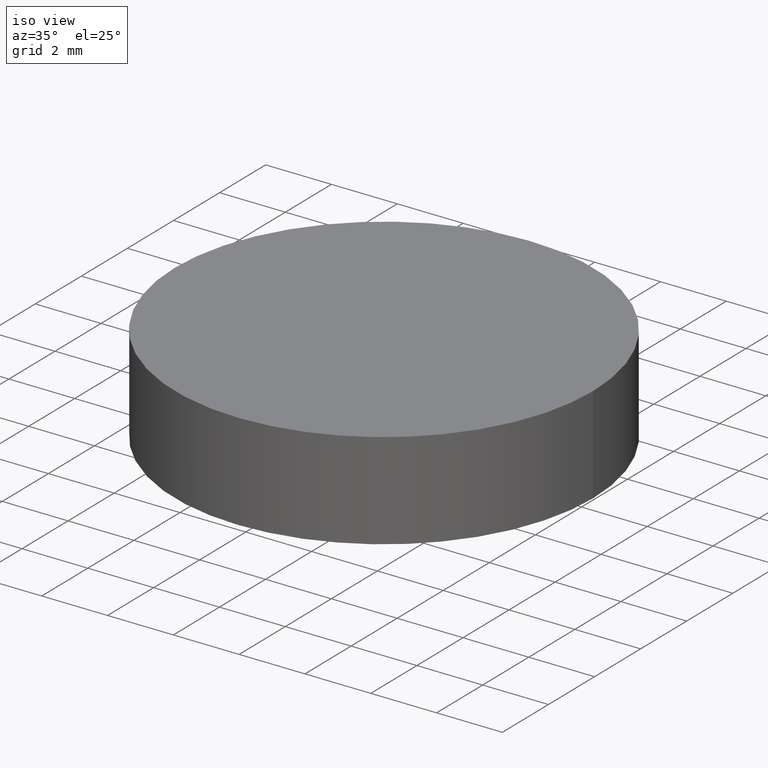
[diagram: clean part render]
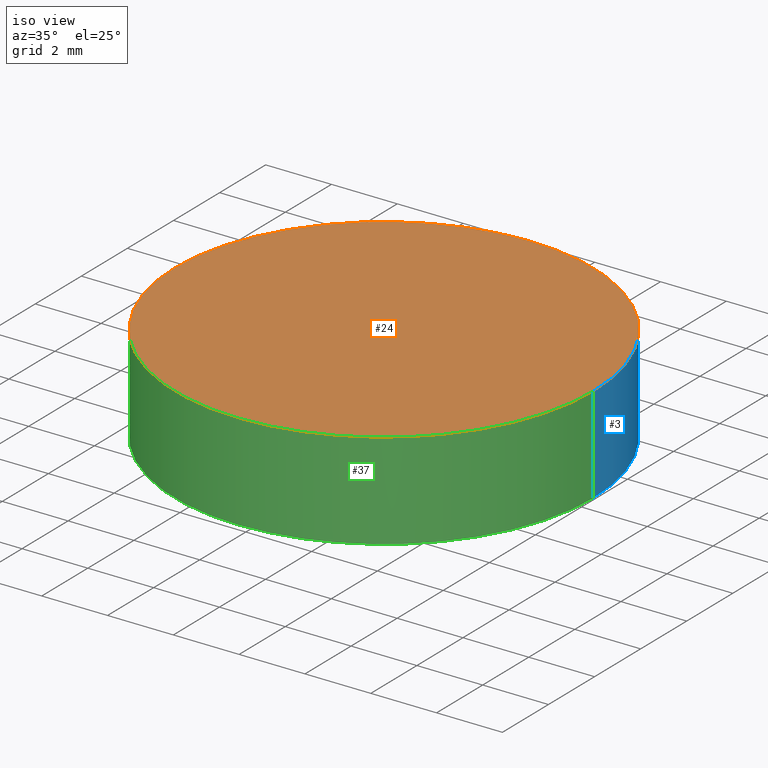
[diagram: same view with three faces highlighted in distinct colors, each labeled with its STEP entity id]
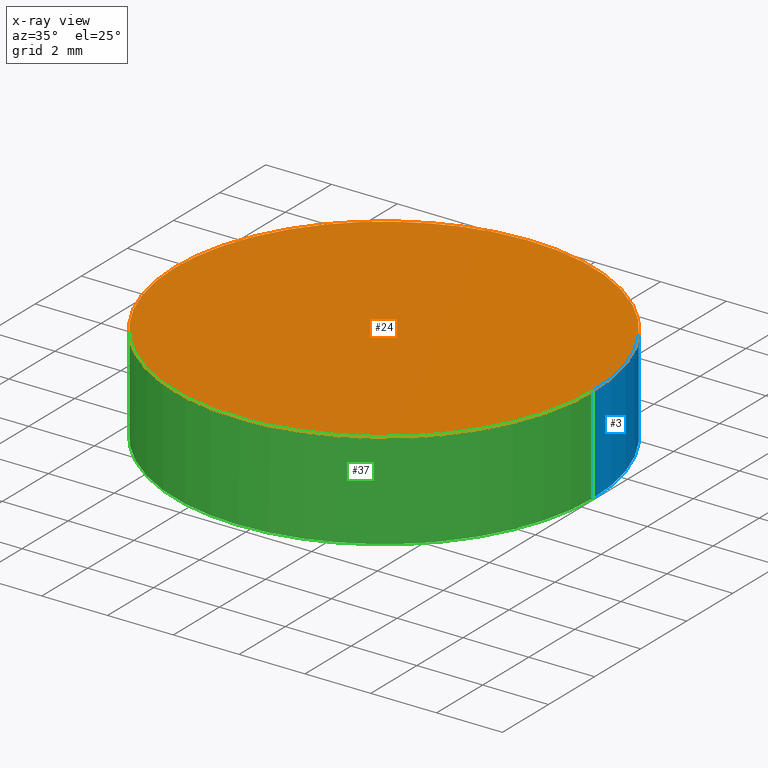
[diagram: x-ray of the same camera — body ghosted, the three highlighted faces saturated]
A machine part, iso view with three faces highlighted in distinct colors.
The next image is the same camera in x-ray (body ghosted, the three faces saturated) — at least one of them is partly hidden behind the body in this view.
Their STEP definitions:

[orange] entity #24 — the highlighted planar face has unit normal (0, 0, 1).
#6 = CARTESIAN_POINT ( 'NONE',  ( 3.888253587292850026E-16, 6.349999999999999645, 3.000000000000000000 ) ) ;
#11 = DIRECTION ( 'NONE',  ( 1.000000000000000000, 0.0000000000000000000, 0.0000000000000000000 ) ) ;
#14 = EDGE_CURVE ( 'NONE', #18, #58, #79, .T. ) ;
#18 = VERTEX_POINT ( 'NONE', #51 ) ;
#21 = CARTESIAN_POINT ( 'NONE',  ( -6.349999999999999645, 7.776507174585690191E-16, 3.000000000000000000 ) ) ;
#24 = ADVANCED_FACE ( 'NONE', ( #113 ), #130, .T. ) ;
#32 = ORIENTED_EDGE ( 'NONE', *, *, #14, .T. ) ;
#42 =( BOUNDED_CURVE ( )  B_SPLINE_CURVE ( 2, ( #115, #105, #91, #120, #162 ),
 .UNSPECIFIED., .F., .T. ) 
 B_SPLINE_CURVE_WITH_KNOTS ( ( 3, 2, 3 ),
 ( 3.141592653589778461, 4.712388980384684345, 6.283185307179590673 ),
 .UNSPECIFIED. ) 
 CURVE ( )  GEOMETRIC_REPRESENTATION_ITEM ( )  RATIONAL_B_SPLINE_CURVE ( ( 1.000000000000002220, 0.7071067811865459074, 1.000000000000000000, 0.7071067811865480168, 1.000000000000000000 ) ) 
 REPRESENTATION_ITEM ( '' )  );
#51 = CARTESIAN_POINT ( 'NONE',  ( 6.349999999999999645, 0.0000000000000000000, 3.000000000000000000 ) ) ;
#53 = DIRECTION ( 'NONE',  ( 0.0000000000000000000, 0.0000000000000000000, 1.000000000000000000 ) ) ;
#58 = VERTEX_POINT ( 'NONE', #176 ) ;
#60 = AXIS2_PLACEMENT_3D ( 'NONE', #128, #53, #11 ) ;
#79 =( BOUNDED_CURVE ( )  B_SPLINE_CURVE ( 2, ( #100, #114, #6, #156, #21 ),
 .UNSPECIFIED., .F., .T. ) 
 B_SPLINE_CURVE_WITH_KNOTS ( ( 3, 2, 3 ),
 ( 0.0000000000000000000, 1.570796326794894116, 3.141592653589778905 ),
 .UNSPECIFIED. ) 
 CURVE ( )  GEOMETRIC_REPRESENTATION_ITEM ( )  RATIONAL_B_SPLINE_CURVE ( ( 1.000000000000000000, 0.7071067811865480168, 1.000000000000000000, 0.7071067811865501263, 0.9999999999999978906 ) ) 
 REPRESENTATION_ITEM ( '' )  );
#81 = ORIENTED_EDGE ( 'NONE', *, *, #129, .T. ) ;
#91 = CARTESIAN_POINT ( 'NONE',  ( -1.166476076187850077E-15, -6.349999999999999645, 3.000000000000000000 ) ) ;
#100 = CARTESIAN_POINT ( 'NONE',  ( 6.349999999999999645, 0.0000000000000000000, 3.000000000000000000 ) ) ;
#105 = CARTESIAN_POINT ( 'NONE',  ( -6.350000000000066258, -6.349999999999999645, 3.000000000000000888 ) ) ;
#113 = FACE_OUTER_BOUND ( 'NONE', #169, .T. ) ;
#114 = CARTESIAN_POINT ( 'NONE',  ( 6.350000000000000533, 6.350000000000000533, 3.000000000000001332 ) ) ;
#115 = CARTESIAN_POINT ( 'NONE',  ( -6.349999999999999645, 7.776507174585690191E-16, 3.000000000000000000 ) ) ;
#120 = CARTESIAN_POINT ( 'NONE',  ( 6.350000000000000533, -6.350000000000000533, 3.000000000000001332 ) ) ;
#128 = CARTESIAN_POINT ( 'NONE',  ( 0.0000000000000000000, 13.15799999999999947, 3.000000000000000000 ) ) ;
#129 = EDGE_CURVE ( 'NONE', #58, #18, #42, .T. ) ;
#130 = PLANE ( 'NONE',  #60 ) ;
#156 = CARTESIAN_POINT ( 'NONE',  ( -6.349999999999934808, 6.350000000000001421, 3.000000000000001776 ) ) ;
#162 = CARTESIAN_POINT ( 'NONE',  ( 6.349999999999999645, 0.0000000000000000000, 3.000000000000000000 ) ) ;
#169 = EDGE_LOOP ( 'NONE', ( #32, #81 ) ) ;
#176 = CARTESIAN_POINT ( 'NONE',  ( -6.349999999999999645, 7.776507174585690191E-16, 3.000000000000000000 ) ) ;

[blue] entity #3 — the highlighted cylindrical surface (partial cylindrical patch) has radius 6.35 mm, axis along (0, 0, 1).
#3 = ADVANCED_FACE ( 'NONE', ( #127 ), #173, .T. ) ;
#4 = ORIENTED_EDGE ( 'NONE', *, *, #10, .T. ) ;
#6 = CARTESIAN_POINT ( 'NONE',  ( 3.888253587292850026E-16, 6.349999999999999645, 3.000000000000000000 ) ) ;
#10 = EDGE_CURVE ( 'NONE', #94, #46, #75, .T. ) ;
#13 = CARTESIAN_POINT ( 'NONE',  ( -6.349999999999999645, 7.776507174585690191E-16, 0.05646273878587430156 ) ) ;
#14 = EDGE_CURVE ( 'NONE', #18, #58, #79, .T. ) ;
#18 = VERTEX_POINT ( 'NONE', #51 ) ;
#21 = CARTESIAN_POINT ( 'NONE',  ( -6.349999999999999645, 7.776507174585690191E-16, 3.000000000000000000 ) ) ;
#23 = CARTESIAN_POINT ( 'NONE',  ( 2.498001805406600244E-16, 8.881784197001250351E-16, 0.05646273878587430156 ) ) ;
#25 = VECTOR ( 'NONE', #149, 1000.000000000000000 ) ;
#38 = CARTESIAN_POINT ( 'NONE',  ( 3.888253587292850026E-16, 6.349999999999999645, 0.05646273878587430156 ) ) ;
#40 = LINE ( 'NONE', #161, #121 ) ;
#45 = AXIS2_PLACEMENT_3D ( 'NONE', #23, #102, #74 ) ;
#46 = VERTEX_POINT ( 'NONE', #13 ) ;
#47 = ORIENTED_EDGE ( 'NONE', *, *, #179, .T. ) ;
#50 = CARTESIAN_POINT ( 'NONE',  ( -6.349999999999999645, 7.776507174585690191E-16, 0.05646273878587430156 ) ) ;
#51 = CARTESIAN_POINT ( 'NONE',  ( 6.349999999999999645, 0.0000000000000000000, 3.000000000000000000 ) ) ;
#58 = VERTEX_POINT ( 'NONE', #176 ) ;
#65 = CARTESIAN_POINT ( 'NONE',  ( 6.350000000000000533, 6.350000000000000533, 0.05646273878587431544 ) ) ;
#67 = DIRECTION ( 'NONE',  ( 0.0000000000000000000, 0.0000000000000000000, 1.000000000000000000 ) ) ;
#70 = ORIENTED_EDGE ( 'NONE', *, *, #14, .F. ) ;
#74 = DIRECTION ( 'NONE',  ( 1.000000000000000000, -1.398706172756100243E-16, 0.0000000000000000000 ) ) ;
#75 =( BOUNDED_CURVE ( )  B_SPLINE_CURVE ( 2, ( #158, #65, #38, #171, #50 ),
 .UNSPECIFIED., .F., .T. ) 
 B_SPLINE_CURVE_WITH_KNOTS ( ( 3, 2, 3 ),
 ( 0.0000000000000000000, 1.570796326794894116, 3.141592653589778905 ),
 .UNSPECIFIED. ) 
 CURVE ( )  GEOMETRIC_REPRESENTATION_ITEM ( )  RATIONAL_B_SPLINE_CURVE ( ( 1.000000000000000000, 0.7071067811865480168, 1.000000000000000000, 0.7071067811865501263, 0.9999999999999978906 ) ) 
 REPRESENTATION_ITEM ( '' )  );
#77 = EDGE_CURVE ( 'NONE', #94, #18, #40, .T. ) ;
#79 =( BOUNDED_CURVE ( )  B_SPLINE_CURVE ( 2, ( #100, #114, #6, #156, #21 ),
 .UNSPECIFIED., .F., .T. ) 
 B_SPLINE_CURVE_WITH_KNOTS ( ( 3, 2, 3 ),
 ( 0.0000000000000000000, 1.570796326794894116, 3.141592653589778905 ),
 .UNSPECIFIED. ) 
 CURVE ( )  GEOMETRIC_REPRESENTATION_ITEM ( )  RATIONAL_B_SPLINE_CURVE ( ( 1.000000000000000000, 0.7071067811865480168, 1.000000000000000000, 0.7071067811865501263, 0.9999999999999978906 ) ) 
 REPRESENTATION_ITEM ( '' )  );
#83 = ORIENTED_EDGE ( 'NONE', *, *, #77, .F. ) ;
#89 = CARTESIAN_POINT ( 'NONE',  ( -6.349999999999999645, 2.554007556858817709E-15, 0.05646273878587430156 ) ) ;
#94 = VERTEX_POINT ( 'NONE', #118 ) ;
#100 = CARTESIAN_POINT ( 'NONE',  ( 6.349999999999999645, 0.0000000000000000000, 3.000000000000000000 ) ) ;
#102 = DIRECTION ( 'NONE',  ( 0.0000000000000000000, 0.0000000000000000000, 1.000000000000000000 ) ) ;
#112 = EDGE_LOOP ( 'NONE', ( #4, #47, #70, #83 ) ) ;
#114 = CARTESIAN_POINT ( 'NONE',  ( 6.350000000000000533, 6.350000000000000533, 3.000000000000001332 ) ) ;
#118 = CARTESIAN_POINT ( 'NONE',  ( 6.349999999999999645, 0.0000000000000000000, 0.05646273878587430156 ) ) ;
#121 = VECTOR ( 'NONE', #67, 1000.000000000000000 ) ;
#127 = FACE_OUTER_BOUND ( 'NONE', #112, .T. ) ;
#149 = DIRECTION ( 'NONE',  ( 0.0000000000000000000, 0.0000000000000000000, 1.000000000000000000 ) ) ;
#156 = CARTESIAN_POINT ( 'NONE',  ( -6.349999999999934808, 6.350000000000001421, 3.000000000000001776 ) ) ;
#158 = CARTESIAN_POINT ( 'NONE',  ( 6.349999999999999645, 0.0000000000000000000, 0.05646273878587430156 ) ) ;
#159 = LINE ( 'NONE', #89, #25 ) ;
#161 = CARTESIAN_POINT ( 'NONE',  ( 6.349999999999999645, 1.540743955509788682E-30, 0.05646273878587430156 ) ) ;
#171 = CARTESIAN_POINT ( 'NONE',  ( -6.349999999999934808, 6.350000000000001421, 0.05646273878587432238 ) ) ;
#173 = CYLINDRICAL_SURFACE ( 'NONE', #45, 6.349999999999999645 ) ;
#176 = CARTESIAN_POINT ( 'NONE',  ( -6.349999999999999645, 7.776507174585690191E-16, 3.000000000000000000 ) ) ;
#179 = EDGE_CURVE ( 'NONE', #46, #58, #159, .T. ) ;

[green] entity #37 — the highlighted cylindrical surface (partial cylindrical patch) has radius 6.35 mm, axis along (0, 0, 1).
#9 =( BOUNDED_CURVE ( )  B_SPLINE_CURVE ( 2, ( #27, #90, #78, #135, #106 ),
 .UNSPECIFIED., .F., .F. ) 
 B_SPLINE_CURVE_WITH_KNOTS ( ( 3, 2, 3 ),
 ( 3.141592653589778461, 4.712388980384684345, 6.283185307179590673 ),
 .UNSPECIFIED. ) 
 CURVE ( )  GEOMETRIC_REPRESENTATION_ITEM ( )  RATIONAL_B_SPLINE_CURVE ( ( 1.000000000000002220, 0.7071067811865459074, 1.000000000000000000, 0.7071067811865480168, 1.000000000000000000 ) ) 
 REPRESENTATION_ITEM ( '' )  );
#13 = CARTESIAN_POINT ( 'NONE',  ( -6.349999999999999645, 7.776507174585690191E-16, 0.05646273878587430156 ) ) ;
#18 = VERTEX_POINT ( 'NONE', #51 ) ;
#25 = VECTOR ( 'NONE', #149, 1000.000000000000000 ) ;
#26 = CARTESIAN_POINT ( 'NONE',  ( 2.498001805406600244E-16, 8.881784197001250351E-16, 0.05646273878587430156 ) ) ;
#27 = CARTESIAN_POINT ( 'NONE',  ( -6.349999999999999645, 7.776507174585690191E-16, 0.05646273878587430156 ) ) ;
#37 = ADVANCED_FACE ( 'NONE', ( #119 ), #54, .T. ) ;
#40 = LINE ( 'NONE', #161, #121 ) ;
#41 = DIRECTION ( 'NONE',  ( 0.0000000000000000000, 0.0000000000000000000, 1.000000000000000000 ) ) ;
#42 =( BOUNDED_CURVE ( )  B_SPLINE_CURVE ( 2, ( #115, #105, #91, #120, #162 ),
 .UNSPECIFIED., .F., .T. ) 
 B_SPLINE_CURVE_WITH_KNOTS ( ( 3, 2, 3 ),
 ( 3.141592653589778461, 4.712388980384684345, 6.283185307179590673 ),
 .UNSPECIFIED. ) 
 CURVE ( )  GEOMETRIC_REPRESENTATION_ITEM ( )  RATIONAL_B_SPLINE_CURVE ( ( 1.000000000000002220, 0.7071067811865459074, 1.000000000000000000, 0.7071067811865480168, 1.000000000000000000 ) ) 
 REPRESENTATION_ITEM ( '' )  );
#46 = VERTEX_POINT ( 'NONE', #13 ) ;
#51 = CARTESIAN_POINT ( 'NONE',  ( 6.349999999999999645, 0.0000000000000000000, 3.000000000000000000 ) ) ;
#54 = CYLINDRICAL_SURFACE ( 'NONE', #151, 6.349999999999999645 ) ;
#57 = ORIENTED_EDGE ( 'NONE', *, *, #179, .F. ) ;
#58 = VERTEX_POINT ( 'NONE', #176 ) ;
#61 = ORIENTED_EDGE ( 'NONE', *, *, #157, .T. ) ;
#67 = DIRECTION ( 'NONE',  ( 0.0000000000000000000, 0.0000000000000000000, 1.000000000000000000 ) ) ;
#77 = EDGE_CURVE ( 'NONE', #94, #18, #40, .T. ) ;
#78 = CARTESIAN_POINT ( 'NONE',  ( -1.166476076187850077E-15, -6.349999999999999645, 0.05646273878587430156 ) ) ;
#89 = CARTESIAN_POINT ( 'NONE',  ( -6.349999999999999645, 2.554007556858817709E-15, 0.05646273878587430156 ) ) ;
#90 = CARTESIAN_POINT ( 'NONE',  ( -6.350000000000066258, -6.349999999999999645, 0.05646273878587431544 ) ) ;
#91 = CARTESIAN_POINT ( 'NONE',  ( -1.166476076187850077E-15, -6.349999999999999645, 3.000000000000000000 ) ) ;
#94 = VERTEX_POINT ( 'NONE', #118 ) ;
#97 = ORIENTED_EDGE ( 'NONE', *, *, #129, .F. ) ;
#105 = CARTESIAN_POINT ( 'NONE',  ( -6.350000000000066258, -6.349999999999999645, 3.000000000000000888 ) ) ;
#106 = CARTESIAN_POINT ( 'NONE',  ( 6.349999999999999645, 0.0000000000000000000, 0.05646273878587430156 ) ) ;
#115 = CARTESIAN_POINT ( 'NONE',  ( -6.349999999999999645, 7.776507174585690191E-16, 3.000000000000000000 ) ) ;
#118 = CARTESIAN_POINT ( 'NONE',  ( 6.349999999999999645, 0.0000000000000000000, 0.05646273878587430156 ) ) ;
#119 = FACE_OUTER_BOUND ( 'NONE', #139, .T. ) ;
#120 = CARTESIAN_POINT ( 'NONE',  ( 6.350000000000000533, -6.350000000000000533, 3.000000000000001332 ) ) ;
#121 = VECTOR ( 'NONE', #67, 1000.000000000000000 ) ;
#129 = EDGE_CURVE ( 'NONE', #58, #18, #42, .T. ) ;
#135 = CARTESIAN_POINT ( 'NONE',  ( 6.350000000000000533, -6.350000000000000533, 0.05646273878587431544 ) ) ;
#139 = EDGE_LOOP ( 'NONE', ( #57, #61, #144, #97 ) ) ;
#144 = ORIENTED_EDGE ( 'NONE', *, *, #77, .T. ) ;
#149 = DIRECTION ( 'NONE',  ( 0.0000000000000000000, 0.0000000000000000000, 1.000000000000000000 ) ) ;
#151 = AXIS2_PLACEMENT_3D ( 'NONE', #26, #41, #163 ) ;
#157 = EDGE_CURVE ( 'NONE', #46, #94, #9, .T. ) ;
#159 = LINE ( 'NONE', #89, #25 ) ;
#161 = CARTESIAN_POINT ( 'NONE',  ( 6.349999999999999645, 1.540743955509788682E-30, 0.05646273878587430156 ) ) ;
#162 = CARTESIAN_POINT ( 'NONE',  ( 6.349999999999999645, 0.0000000000000000000, 3.000000000000000000 ) ) ;
#163 = DIRECTION ( 'NONE',  ( 1.000000000000000000, -1.398706172756100243E-16, 0.0000000000000000000 ) ) ;
#176 = CARTESIAN_POINT ( 'NONE',  ( -6.349999999999999645, 7.776507174585690191E-16, 3.000000000000000000 ) ) ;
#179 = EDGE_CURVE ( 'NONE', #46, #58, #159, .T. ) ;